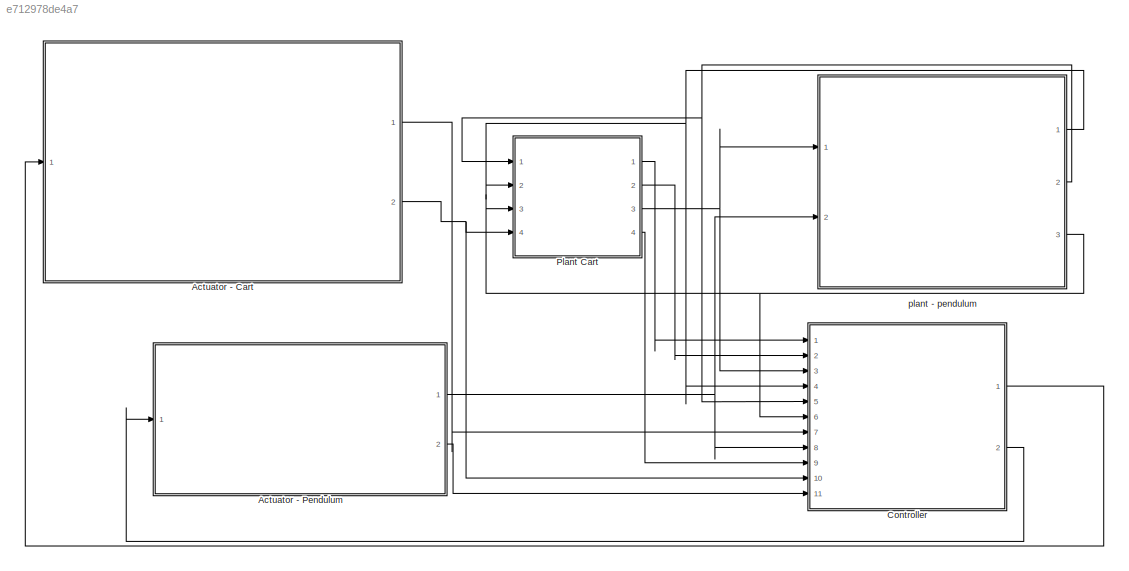
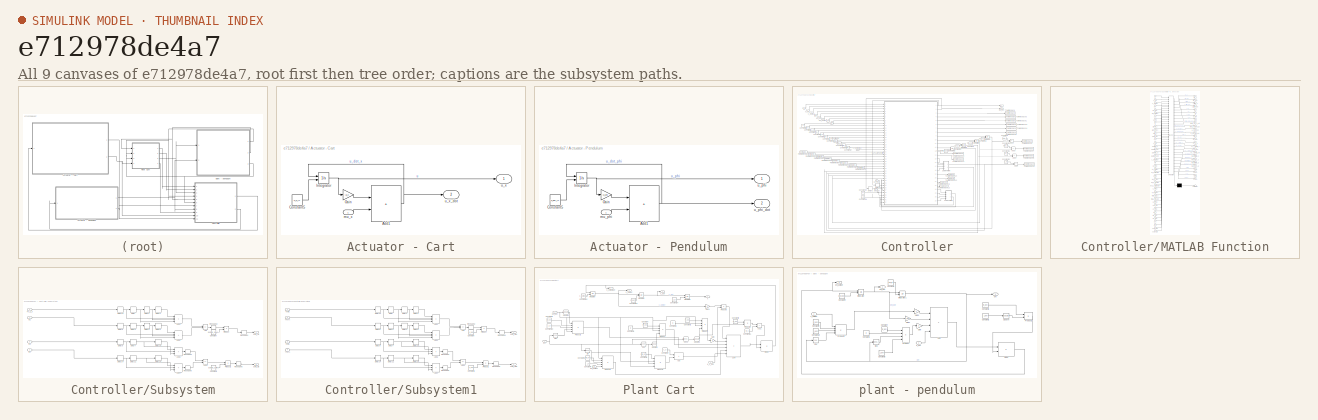
[diagram: thumbnail index - all 9 canvases of the model, root first then tree order]
MODEL slx_e712978de4a7
KIND model
CONFIG AbsTol = auto
CONFIG EnableMultiTasking = off
CONFIG FixedStep = ts
CONFIG MaxStep = auto
CONFIG MinStep = auto
CONFIG RelTol = 1e-3
CONFIG SampleTimeConstraint = Unconstrained
CONFIG SolverName = FixedStepAuto
CONFIG StartTime = 0.0
CONFIG StopTime = tf
BLOCK [SubSystem] Actuator - Cart
  Ports = [1, 2]
  RequestExecContextInheritance = off
BLOCK [Sum] Actuator - Cart/Add1
  IconShape = rectangular
  Ports = [2, 1]
BLOCK [Constant] Actuator - Cart/Constant5
  Value = u_x_ic
BLOCK [Gain] Actuator - Cart/Gain
  Gain = -a_x
BLOCK [Integrator] Actuator - Cart/Integrator
  InitialConditionSource = external
  Ports = [2, 1]
BLOCK [Inport] Actuator - Cart/mu_x
BLOCK [Outport] Actuator - Cart/u_x
BLOCK [Outport] Actuator - Cart/u_x_dot
  Port = 2
BLOCK [SubSystem] Actuator - Pendulum
  Ports = [1, 2]
  RequestExecContextInheritance = off
BLOCK [Sum] Actuator - Pendulum/Add1
  IconShape = rectangular
  Ports = [2, 1]
BLOCK [Constant] Actuator - Pendulum/Constant5
  Value = u_phi_ic
BLOCK [Gain] Actuator - Pendulum/Gain
  Gain = -a_phi
BLOCK [Integrator] Actuator - Pendulum/Integrator
  InitialConditionSource = external
  Ports = [2, 1]
BLOCK [Inport] Actuator - Pendulum/mu_phi
BLOCK [Outport] Actuator - Pendulum/u_phi
BLOCK [Outport] Actuator - Pendulum/u_phi_dot
  Port = 2
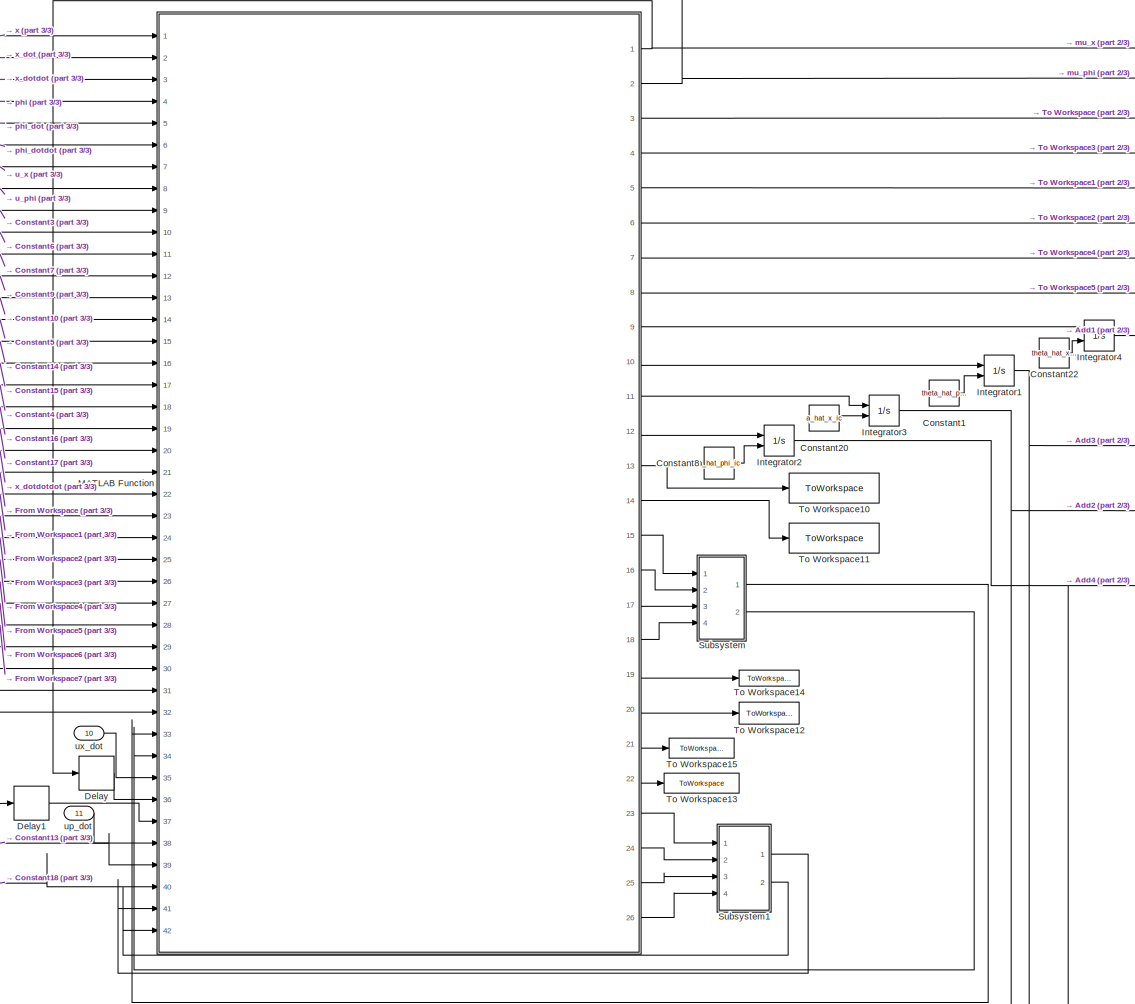
[diagram: Controller - part 1/3, center side, full height]
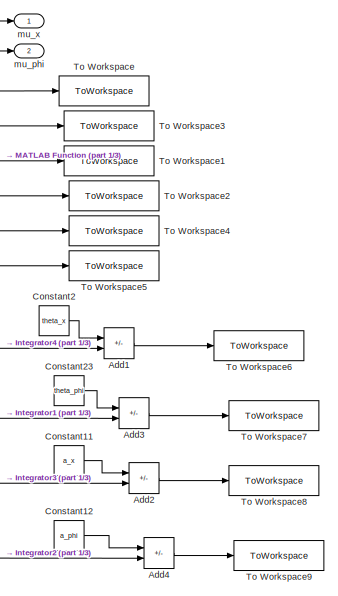
[diagram: Controller - part 2/3, top right region]
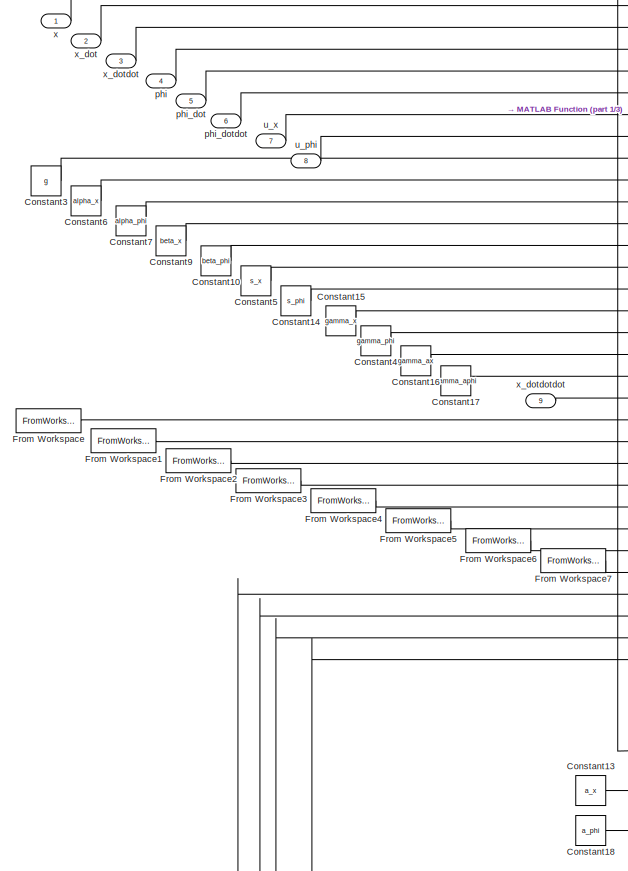
[diagram: Controller - part 3/3, middle left region]
BLOCK [SubSystem] Controller
  Ports = [11, 2]
  RequestExecContextInheritance = off
BLOCK [Sum] Controller/Add1
  IconShape = rectangular
  Inputs = +-
  Ports = [2, 1]
BLOCK [Sum] Controller/Add2
  IconShape = rectangular
  Inputs = +-
  Ports = [2, 1]
BLOCK [Sum] Controller/Add3
  IconShape = rectangular
  Inputs = +-
  Ports = [2, 1]
BLOCK [Sum] Controller/Add4
  IconShape = rectangular
  Inputs = +-
  Ports = [2, 1]
BLOCK [Constant] Controller/Constant1
  Value = theta_hat_phi_ic
BLOCK [Constant] Controller/Constant10
  Value = beta_phi
BLOCK [Constant] Controller/Constant11
  Value = a_x
BLOCK [Constant] Controller/Constant12
  Value = a_phi
BLOCK [Constant] Controller/Constant13
  Value = a_x
BLOCK [Constant] Controller/Constant14
  Value = s_phi
BLOCK [Constant] Controller/Constant15
  Value = gamma_x
BLOCK [Constant] Controller/Constant16
  Value = gamma_ax
BLOCK [Constant] Controller/Constant17
  Value = gamma_aphi
BLOCK [Constant] Controller/Constant18
  Value = a_phi
BLOCK [Constant] Controller/Constant2
  Value = theta_x
BLOCK [Constant] Controller/Constant20
  Value = a_hat_x_ic
BLOCK [Constant] Controller/Constant22
  Value = theta_hat_x_ic
BLOCK [Constant] Controller/Constant23
  Value = theta_phi
BLOCK [Constant] Controller/Constant3
  Value = g
BLOCK [Constant] Controller/Constant4
  Value = gamma_phi
BLOCK [Constant] Controller/Constant5
  Value = s_x
BLOCK [Constant] Controller/Constant6
  Value = alpha_x
BLOCK [Constant] Controller/Constant7
  Value = alpha_phi
BLOCK [Constant] Controller/Constant8
  Value = a_hat_phi_ic
BLOCK [Constant] Controller/Constant9
  Value = beta_x
BLOCK [Delay] Controller/Delay
  DelayLength = 1
  InputPortMap = u0
  Ports = [1, 1]
BLOCK [Delay] Controller/Delay1
  DelayLength = 1
  InputPortMap = u0
  Ports = [1, 1]
BLOCK [FromWorkspace] Controller/From Workspace
  VariableName = xdslx
BLOCK [FromWorkspace] Controller/From Workspace1
  VariableName = xd_dotslx
BLOCK [FromWorkspace] Controller/From Workspace2
  VariableName = xd_dotdotslx
BLOCK [FromWorkspace] Controller/From Workspace3
  VariableName = xd_dotdotdotslx
BLOCK [FromWorkspace] Controller/From Workspace4
  VariableName = pdslx
BLOCK [FromWorkspace] Controller/From Workspace5
  VariableName = pd_dotslx
BLOCK [FromWorkspace] Controller/From Workspace6
  VariableName = pd_dotdotslx
BLOCK [FromWorkspace] Controller/From Workspace7
  VariableName = pd_dotdotdotslx
BLOCK [Integrator] Controller/Integrator1
  InitialConditionSource = external
  Ports = [2, 1]
BLOCK [Integrator] Controller/Integrator2
  InitialConditionSource = external
  Ports = [2, 1]
BLOCK [Integrator] Controller/Integrator3
  InitialConditionSource = external
  Ports = [2, 1]
BLOCK [Integrator] Controller/Integrator4
  InitialConditionSource = external
  Ports = [2, 1]
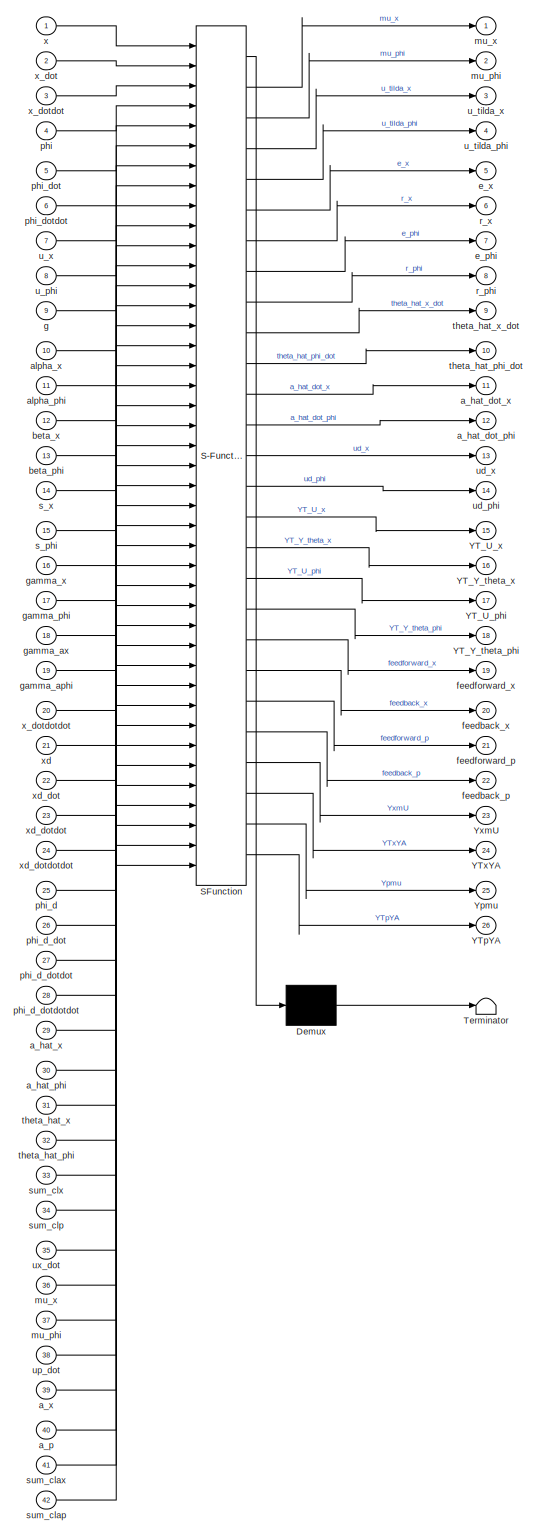
[diagram: Controller/MATLAB Function - part 1/1, most of the canvas]
BLOCK [SubSystem] Controller/MATLAB Function
  ErrorFcn = Stateflow.Translate.translate
  PermitHierarchicalResolution = ExplicitOnly
  Ports = [42, 26]
  RequestExecContextInheritance = off
  SFBlockType = MATLAB Function
  TreatAsAtomicUnit = on
BLOCK [Demux] Controller/MATLAB Function/ Demux 
  Outputs = 1
  Ports = [1, 1]
BLOCK [S-Function] Controller/MATLAB Function/ SFunction 
  EnableBusSupport = on
  FunctionName = sf_sfun
  PortCounts = [42 27]
  Ports = [42, 27]
  SFcnIsStateOwnerBlock = off
  SFunctionDeploymentMode = off
  Tag = Stateflow S-Function 2
BLOCK [Terminator] Controller/MATLAB Function/ Terminator 
BLOCK [Outport] Controller/MATLAB Function/YT_U_phi
  Port = 17
BLOCK [Outport] Controller/MATLAB Function/YT_U_x
  Port = 15
BLOCK [Outport] Controller/MATLAB Function/YT_Y_theta_phi
  Port = 18
BLOCK [Outport] Controller/MATLAB Function/YT_Y_theta_x
  Port = 16
BLOCK [Outport] Controller/MATLAB Function/YTpYA
  Port = 26
BLOCK [Outport] Controller/MATLAB Function/YTxYA
  Port = 24
BLOCK [Outport] Controller/MATLAB Function/Ypmu
  Port = 25
BLOCK [Outport] Controller/MATLAB Function/YxmU
  Port = 23
BLOCK [Outport] Controller/MATLAB Function/a_hat_dot_phi
  Port = 12
BLOCK [Outport] Controller/MATLAB Function/a_hat_dot_x
  Port = 11
BLOCK [Inport] Controller/MATLAB Function/a_hat_phi
  Port = 30
BLOCK [Inport] Controller/MATLAB Function/a_hat_x
  Port = 29
BLOCK [Inport] Controller/MATLAB Function/a_p
  Port = 40
BLOCK [Inport] Controller/MATLAB Function/a_x
  Port = 39
BLOCK [Inport] Controller/MATLAB Function/alpha_phi
  Port = 11
BLOCK [Inport] Controller/MATLAB Function/alpha_x
  Port = 10
BLOCK [Inport] Controller/MATLAB Function/beta_phi
  Port = 13
BLOCK [Inport] Controller/MATLAB Function/beta_x
  Port = 12
BLOCK [Outport] Controller/MATLAB Function/e_phi
  Port = 7
BLOCK [Outport] Controller/MATLAB Function/e_x
  Port = 5
BLOCK [Outport] Controller/MATLAB Function/feedback_p
  Port = 22
BLOCK [Outport] Controller/MATLAB Function/feedback_x
  Port = 20
BLOCK [Outport] Controller/MATLAB Function/feedforward_p
  Port = 21
BLOCK [Outport] Controller/MATLAB Function/feedforward_x
  Port = 19
BLOCK [Inport] Controller/MATLAB Function/g
  Port = 9
BLOCK [Inport] Controller/MATLAB Function/gamma_aphi
  Port = 19
BLOCK [Inport] Controller/MATLAB Function/gamma_ax
  Port = 18
BLOCK [Inport] Controller/MATLAB Function/gamma_phi
  Port = 17
BLOCK [Inport] Controller/MATLAB Function/gamma_x
  Port = 16
BLOCK [Outport] Controller/MATLAB Function/mu_phi
  Port = 2
BLOCK [Inport] Controller/MATLAB Function/mu_phi 
  Port = 37
BLOCK [Outport] Controller/MATLAB Function/mu_x
BLOCK [Inport] Controller/MATLAB Function/mu_x 
  Port = 36
BLOCK [Inport] Controller/MATLAB Function/phi
  Port = 4
BLOCK [Inport] Controller/MATLAB Function/phi_d
  Port = 25
BLOCK [Inport] Controller/MATLAB Function/phi_d_dot
  Port = 26
BLOCK [Inport] Controller/MATLAB Function/phi_d_dotdot
  Port = 27
BLOCK [Inport] Controller/MATLAB Function/phi_d_dotdotdot
  Port = 28
BLOCK [Inport] Controller/MATLAB Function/phi_dot
  Port = 5
BLOCK [Inport] Controller/MATLAB Function/phi_dotdot
  Port = 6
BLOCK [Outport] Controller/MATLAB Function/r_phi
  Port = 8
BLOCK [Outport] Controller/MATLAB Function/r_x
  Port = 6
BLOCK [Inport] Controller/MATLAB Function/s_phi
  Port = 15
BLOCK [Inport] Controller/MATLAB Function/s_x
  Port = 14
BLOCK [Inport] Controller/MATLAB Function/sum_clap
  Port = 42
BLOCK [Inport] Controller/MATLAB Function/sum_clax
  Port = 41
BLOCK [Inport] Controller/MATLAB Function/sum_clp
  Port = 34
BLOCK [Inport] Controller/MATLAB Function/sum_clx
  Port = 33
BLOCK [Inport] Controller/MATLAB Function/theta_hat_phi
  Port = 32
BLOCK [Outport] Controller/MATLAB Function/theta_hat_phi_dot
  Port = 10
BLOCK [Inport] Controller/MATLAB Function/theta_hat_x
  Port = 31
BLOCK [Outport] Controller/MATLAB Function/theta_hat_x_dot
  Port = 9
BLOCK [Inport] Controller/MATLAB Function/u_phi
  Port = 8
BLOCK [Outport] Controller/MATLAB Function/u_tilda_phi
  Port = 4
BLOCK [Outport] Controller/MATLAB Function/u_tilda_x
  Port = 3
BLOCK [Inport] Controller/MATLAB Function/u_x
  Port = 7
BLOCK [Outport] Controller/MATLAB Function/ud_phi
  Port = 14
BLOCK [Outport] Controller/MATLAB Function/ud_x
  Port = 13
BLOCK [Inport] Controller/MATLAB Function/up_dot
  Port = 38
BLOCK [Inport] Controller/MATLAB Function/ux_dot
  Port = 35
BLOCK [Inport] Controller/MATLAB Function/x
BLOCK [Inport] Controller/MATLAB Function/x_dot
  Port = 2
BLOCK [Inport] Controller/MATLAB Function/x_dotdot
  Port = 3
BLOCK [Inport] Controller/MATLAB Function/x_dotdotdot
  Port = 20
BLOCK [Inport] Controller/MATLAB Function/xd
  Port = 21
BLOCK [Inport] Controller/MATLAB Function/xd_dot
  Port = 22
BLOCK [Inport] Controller/MATLAB Function/xd_dotdot
  Port = 23
BLOCK [Inport] Controller/MATLAB Function/xd_dotdotdot
  Port = 24
BLOCK [SubSystem] Controller/Subsystem
  Ports = [4, 2]
  RequestExecContextInheritance = off
BLOCK [Sum] Controller/Subsystem/Add
  IconShape = rectangular
  Inputs = +-
  Ports = [2, 1]
BLOCK [Sum] Controller/Subsystem/Add1
  IconShape = rectangular
  Inputs = ++++
  Ports = [4, 1]
BLOCK [Sum] Controller/Subsystem/Add2
  IconShape = rectangular
  Inputs = ++++
  Ports = [4, 1]
BLOCK [Sum] Controller/Subsystem/Add3
  IconShape = rectangular
  Inputs = +-
  Ports = [2, 1]
BLOCK [Sum] Controller/Subsystem/Add4
  IconShape = rectangular
  Inputs = +++
  Ports = [3, 1]
BLOCK [Sum] Controller/Subsystem/Add5
  IconShape = rectangular
  Inputs = +++
  Ports = [3, 1]
BLOCK [Constant] Controller/Subsystem/Constant
  Value = gamma_x*K_clx
BLOCK [Constant] Controller/Subsystem/Constant1
  Value = gamma_phi*K_clp
BLOCK [Delay] Controller/Subsystem/Delay
  DelayLength = 1
  InitialCondition = zeros(4,1)
  InputPortMap = u0
  Ports = [1, 1]
BLOCK [Delay] Controller/Subsystem/Delay1
  DelayLength = 1
  InitialCondition = zeros(4,1)
  InputPortMap = u0
  Ports = [1, 1]
BLOCK [Delay] Controller/Subsystem/Delay10
  DelayLength = 1
  InputPortMap = u0
  Ports = [1, 1]
BLOCK [Delay] Controller/Subsystem/Delay11
  DelayLength = 1
  InputPortMap = u0
  Ports = [1, 1]
BLOCK [Delay] Controller/Subsystem/Delay12
  DelayLength = 1
  InitialCondition = zeros(4,1)
  InputPortMap = u0
  Ports = [1, 1]
BLOCK [Delay] Controller/Subsystem/Delay14
  DelayLength = 1
  InputPortMap = u0
  Ports = [1, 1]
BLOCK [Delay] Controller/Subsystem/Delay15
  DelayLength = 1
  InputPortMap = u0
  Ports = [1, 1]
BLOCK [Delay] Controller/Subsystem/Delay2
  DelayLength = 1
  InitialCondition = zeros(4,1)
  InputPortMap = u0
  Ports = [1, 1]
BLOCK [Delay] Controller/Subsystem/Delay3
  DelayLength = 1
  InputPortMap = u0
  Ports = [1, 1]
BLOCK [Delay] Controller/Subsystem/Delay4
  DelayLength = 1
  InputPortMap = u0
  Ports = [1, 1]
BLOCK [Delay] Controller/Subsystem/Delay5
  DelayLength = 1
  InputPortMap = u0
  Ports = [1, 1]
BLOCK [Delay] Controller/Subsystem/Delay6
  DelayLength = 1
  InputPortMap = u0
  Ports = [1, 1]
BLOCK [Delay] Controller/Subsystem/Delay7
  DelayLength = 1
  InputPortMap = u0
  Ports = [1, 1]
BLOCK [Delay] Controller/Subsystem/Delay9
  DelayLength = 1
  InputPortMap = u0
  Ports = [1, 1]
BLOCK [Inport] Controller/Subsystem/In2
  Port = 2
  PortDimensions = [4,1]
BLOCK [Inport] Controller/Subsystem/In3
  Port = 3
  PortDimensions = [3,1]
BLOCK [Inport] Controller/Subsystem/In4
  Port = 4
  PortDimensions = [3,1]
BLOCK [Product] Controller/Subsystem/Product
  Multiplication = Matrix(*)
  Ports = [2, 1]
BLOCK [Product] Controller/Subsystem/Product1
  Multiplication = Matrix(*)
  Ports = [2, 1]
BLOCK [Reshape] Controller/Subsystem/Reshape2
  OutputDimensionality = Row vector (2-D)
  Ports = [1, 1]
BLOCK [Reshape] Controller/Subsystem/Reshape3
  OutputDimensionality = Row vector (2-D)
  Ports = [1, 1]
BLOCK [Reshape] Controller/Subsystem/Reshape4
  Ports = [1, 1]
BLOCK [Reshape] Controller/Subsystem/Reshape5
  OutputDimensionality = Row vector (2-D)
  Ports = [1, 1]
BLOCK [Reshape] Controller/Subsystem/Reshape6
  Ports = [1, 1]
BLOCK [Inport] Controller/Subsystem/YT_U_x
  PortDimensions = [4,1]
BLOCK [Outport] Controller/Subsystem/sum_clp
  Port = 2
BLOCK [Outport] Controller/Subsystem/sum_clx
BLOCK [SubSystem] Controller/Subsystem1
  Ports = [4, 2]
  RequestExecContextInheritance = off
BLOCK [Sum] Controller/Subsystem1/Add
  IconShape = rectangular
  Inputs = +-
  Ports = [2, 1]
BLOCK [Sum] Controller/Subsystem1/Add1
  IconShape = rectangular
  Inputs = ++++
  Ports = [4, 1]
BLOCK [Sum] Controller/Subsystem1/Add2
  IconShape = rectangular
  Inputs = ++++
  Ports = [4, 1]
BLOCK [Sum] Controller/Subsystem1/Add3
  IconShape = rectangular
  Inputs = +-
  Ports = [2, 1]
BLOCK [Sum] Controller/Subsystem1/Add4
  IconShape = rectangular
  Inputs = +++
  Ports = [3, 1]
BLOCK [Sum] Controller/Subsystem1/Add5
  IconShape = rectangular
  Inputs = +++
  Ports = [3, 1]
BLOCK [Constant] Controller/Subsystem1/Constant
  Value = K_axp
BLOCK [Constant] Controller/Subsystem1/Constant1
  Value = K_axp
BLOCK [Delay] Controller/Subsystem1/Delay
  DelayLength = 1
  InitialCondition = zeros(1,1)
  InputPortMap = u0
  Ports = [1, 1]
BLOCK [Delay] Controller/Subsystem1/Delay1
  DelayLength = 1
  InitialCondition = zeros(1,1)
  InputPortMap = u0
  Ports = [1, 1]
BLOCK [Delay] Controller/Subsystem1/Delay10
  DelayLength = 1
  InputPortMap = u0
  Ports = [1, 1]
BLOCK [Delay] Controller/Subsystem1/Delay11
  DelayLength = 1
  InputPortMap = u0
  Ports = [1, 1]
BLOCK [Delay] Controller/Subsystem1/Delay12
  DelayLength = 1
  InitialCondition = zeros(1,1)
  InputPortMap = u0
  Ports = [1, 1]
BLOCK [Delay] Controller/Subsystem1/Delay14
  DelayLength = 1
  InputPortMap = u0
  Ports = [1, 1]
BLOCK [Delay] Controller/Subsystem1/Delay15
  DelayLength = 1
  InputPortMap = u0
  Ports = [1, 1]
BLOCK [Delay] Controller/Subsystem1/Delay2
  DelayLength = 1
  InitialCondition = zeros(1,1)
  InputPortMap = u0
  Ports = [1, 1]
BLOCK [Delay] Controller/Subsystem1/Delay3
  DelayLength = 1
  InputPortMap = u0
  Ports = [1, 1]
BLOCK [Delay] Controller/Subsystem1/Delay4
  DelayLength = 1
  InputPortMap = u0
  Ports = [1, 1]
BLOCK [Delay] Controller/Subsystem1/Delay5
  DelayLength = 1
  InputPortMap = u0
  Ports = [1, 1]
BLOCK [Delay] Controller/Subsystem1/Delay6
  DelayLength = 1
  InputPortMap = u0
  Ports = [1, 1]
BLOCK [Delay] Controller/Subsystem1/Delay7
  DelayLength = 1
  InputPortMap = u0
  Ports = [1, 1]
BLOCK [Delay] Controller/Subsystem1/Delay9
  DelayLength = 1
  InputPortMap = u0
  Ports = [1, 1]
BLOCK [Product] Controller/Subsystem1/Product
  Multiplication = Matrix(*)
  Ports = [2, 1]
BLOCK [Product] Controller/Subsystem1/Product1
  Multiplication = Matrix(*)
  Ports = [2, 1]
BLOCK [Reshape] Controller/Subsystem1/Reshape2
  OutputDimensionality = Row vector (2-D)
  Ports = [1, 1]
BLOCK [Reshape] Controller/Subsystem1/Reshape3
  OutputDimensionality = Row vector (2-D)
  Ports = [1, 1]
BLOCK [Reshape] Controller/Subsystem1/Reshape4
  Ports = [1, 1]
BLOCK [Reshape] Controller/Subsystem1/Reshape5
  OutputDimensionality = Row vector (2-D)
  Ports = [1, 1]
BLOCK [Reshape] Controller/Subsystem1/Reshape6
  Ports = [1, 1]
BLOCK [Inport] Controller/Subsystem1/YTpYA
  Port = 4
  PortDimensions = [1,1]
BLOCK [Inport] Controller/Subsystem1/YTxYA
  Port = 2
  PortDimensions = [1,1]
BLOCK [Inport] Controller/Subsystem1/Ypmu
  Port = 3
  PortDimensions = [1,1]
BLOCK [Inport] Controller/Subsystem1/Yxmu
  PortDimensions = [1,1]
BLOCK [Outport] Controller/Subsystem1/sum_clap
  Port = 2
BLOCK [Outport] Controller/Subsystem1/sum_clax
BLOCK [ToWorkspace] Controller/To Workspace
  FixptAsFi = on
  MaxDataPoints = inf
  Ports = [1]
  SampleTime = -1
  SaveFormat = Timeseries
  VariableName = u_tilda_x_t
BLOCK [ToWorkspace] Controller/To Workspace1
  FixptAsFi = on
  MaxDataPoints = inf
  Ports = [1]
  SampleTime = -1
  SaveFormat = Timeseries
  VariableName = e_x_t
BLOCK [ToWorkspace] Controller/To Workspace10
  FixptAsFi = on
  MaxDataPoints = inf
  Ports = [1]
  SampleTime = -1
  SaveFormat = Timeseries
  VariableName = ud_x_t
BLOCK [ToWorkspace] Controller/To Workspace11
  FixptAsFi = on
  MaxDataPoints = inf
  Ports = [1]
  SampleTime = -1
  SaveFormat = Timeseries
  VariableName = ud_phi_t
BLOCK [ToWorkspace] Controller/To Workspace12
  FixptAsFi = on
  MaxDataPoints = inf
  Ports = [1]
  SampleTime = -1
  SaveFormat = Timeseries
  VariableName = fb_x
BLOCK [ToWorkspace] Controller/To Workspace13
  FixptAsFi = on
  MaxDataPoints = inf
  Ports = [1]
  SampleTime = -1
  SaveFormat = Timeseries
  VariableName = fb_p
BLOCK [ToWorkspace] Controller/To Workspace14
  FixptAsFi = on
  MaxDataPoints = inf
  Ports = [1]
  SampleTime = -1
  SaveFormat = Timeseries
  VariableName = ff_x
BLOCK [ToWorkspace] Controller/To Workspace15
  FixptAsFi = on
  MaxDataPoints = inf
  Ports = [1]
  SampleTime = -1
  SaveFormat = Timeseries
  VariableName = ff_p
BLOCK [ToWorkspace] Controller/To Workspace2
  FixptAsFi = on
  MaxDataPoints = inf
  Ports = [1]
  SampleTime = -1
  SaveFormat = Timeseries
  VariableName = r_x_t
BLOCK [ToWorkspace] Controller/To Workspace3
  FixptAsFi = on
  MaxDataPoints = inf
  Ports = [1]
  SampleTime = -1
  SaveFormat = Timeseries
  VariableName = u_tilda_phi_t
BLOCK [ToWorkspace] Controller/To Workspace4
  FixptAsFi = on
  MaxDataPoints = inf
  Ports = [1]
  SampleTime = -1
  SaveFormat = Timeseries
  VariableName = e_phi_t
BLOCK [ToWorkspace] Controller/To Workspace5
  FixptAsFi = on
  MaxDataPoints = inf
  Ports = [1]
  SampleTime = -1
  SaveFormat = Timeseries
  VariableName = r_phi_t
BLOCK [ToWorkspace] Controller/To Workspace6
  FixptAsFi = on
  MaxDataPoints = inf
  Ports = [1]
  SampleTime = -1
  SaveFormat = Timeseries
  VariableName = theta_x_tilda_t
BLOCK [ToWorkspace] Controller/To Workspace7
  FixptAsFi = on
  MaxDataPoints = inf
  Ports = [1]
  SampleTime = -1
  SaveFormat = Timeseries
  VariableName = theta_phi_tilda_t
BLOCK [ToWorkspace] Controller/To Workspace8
  FixptAsFi = on
  MaxDataPoints = inf
  Ports = [1]
  SampleTime = -1
  SaveFormat = Timeseries
  VariableName = a_x_tilda_t
BLOCK [ToWorkspace] Controller/To Workspace9
  FixptAsFi = on
  MaxDataPoints = inf
  Ports = [1]
  SampleTime = -1
  SaveFormat = Timeseries
  VariableName = a_phi_tilda_t
BLOCK [Outport] Controller/mu_phi
  Port = 2
BLOCK [Outport] Controller/mu_x
BLOCK [Inport] Controller/phi
  Port = 4
BLOCK [Inport] Controller/phi_dot
  Port = 5
BLOCK [Inport] Controller/phi_dotdot
  Port = 6
BLOCK [Inport] Controller/u_phi
  Port = 8
BLOCK [Inport] Controller/u_x
  Port = 7
BLOCK [Inport] Controller/up_dot
  Port = 11
BLOCK [Inport] Controller/ux_dot
  Port = 10
BLOCK [Inport] Controller/x
BLOCK [Inport] Controller/x_dot
  Port = 2
BLOCK [Inport] Controller/x_dotdot
  Port = 3
BLOCK [Inport] Controller/x_dotdotdot
  Port = 9
BLOCK [SubSystem] Plant Cart
  Ports = [4, 4]
  RequestExecContextInheritance = off
BLOCK [Sum] Plant Cart/Add
  IconShape = rectangular
  Ports = [2, 1]
BLOCK [Sum] Plant Cart/Add1
  IconShape = rectangular
  Ports = [2, 1]
BLOCK [Constant] Plant Cart/Constant
  Value = m_phi
BLOCK [Constant] Plant Cart/Constant1
  Value = g
BLOCK [Constant] Plant Cart/Constant10
  Value = l_x
BLOCK [Constant] Plant Cart/Constant11
  Value = m_x
BLOCK [Constant] Plant Cart/Constant12
  Value = x_dotdot_ic
BLOCK [Constant] Plant Cart/Constant13
  Value = x_dot_ic
BLOCK [Constant] Plant Cart/Constant14
  Value = x_ic
BLOCK [Constant] Plant Cart/Constant2
  Value = m_phi
BLOCK [Constant] Plant Cart/Constant3
  Value = g
BLOCK [Constant] Plant Cart/Constant4
  Value = l_x
BLOCK [Constant] Plant Cart/Constant5
  Value = 2*m_phi
BLOCK [Constant] Plant Cart/Constant6
  Value = 2*m_phi
BLOCK [Constant] Plant Cart/Constant7
  Value = c_x
BLOCK [Constant] Plant Cart/Constant8
  Value = m_phi
BLOCK [Constant] Plant Cart/Constant9
  Value = m_phi
BLOCK [Trigonometry] Plant Cart/Cos
  Operator = cos
  Ports = [1, 1]
BLOCK [Trigonometry] Plant Cart/Cos1
  Ports = [1, 1]
BLOCK [Product] Plant Cart/Divide
  Inputs = */
  Ports = [2, 1]
BLOCK [Gain] Plant Cart/Gain
  Gain = -1
BLOCK [Gain] Plant Cart/Gain1
  Gain = -1
BLOCK [Integrator] Plant Cart/Integrator
  InitialConditionSource = external
  Ports = [2, 1]
BLOCK [Integrator] Plant Cart/Integrator1
  InitialConditionSource = external
  Ports = [2, 1]
BLOCK [Integrator] Plant Cart/Integrator2
  InitialConditionSource = external
  Ports = [2, 1]
BLOCK [Product] Plant Cart/Product
  Inputs = 4
  Ports = [4, 1]
BLOCK [Product] Plant Cart/Product1
  Inputs = 4
  Ports = [4, 1]
BLOCK [Product] Plant Cart/Product2
  Inputs = 5
  Ports = [5, 1]
BLOCK [Product] Plant Cart/Product3
  Inputs = 5
  Ports = [5, 1]
BLOCK [Product] Plant Cart/Product4
  Inputs = 4
  Ports = [4, 1]
BLOCK [Product] Plant Cart/Product5
  Ports = [2, 1]
BLOCK [Product] Plant Cart/Product6
  Ports = [2, 1]
BLOCK [Trigonometry] Plant Cart/Sin
  Ports = [1, 1]
BLOCK [Trigonometry] Plant Cart/Sin2
  Operator = cos
  Ports = [1, 1]
BLOCK [Math] Plant Cart/Square1
  Operator = square
  Ports = [1, 1]
BLOCK [Math] Plant Cart/Square2
  Operator = square
  Ports = [1, 1]
BLOCK [Math] Plant Cart/Square3
  Operator = square
  Ports = [1, 1]
BLOCK [Sum] Plant Cart/Sum
  IconShape = rectangular
  Inputs = ++++++
  Ports = [6, 1]
BLOCK [Inport] Plant Cart/phi
  Port = 2
BLOCK [Inport] Plant Cart/phi_dot
BLOCK [Inport] Plant Cart/phi_dotdot
  Port = 3
BLOCK [Inport] Plant Cart/u_x_dot
  Port = 4
BLOCK [Outport] Plant Cart/x
BLOCK [Outport] Plant Cart/x_dot
  Port = 2
BLOCK [Outport] Plant Cart/x_dotdot
  Port = 3
BLOCK [Outport] Plant Cart/x_dotdotdot
  Port = 4
BLOCK [SubSystem] plant - pendulum
  Ports = [2, 3]
  RequestExecContextInheritance = off
BLOCK [Sum] plant - pendulum/Add
  IconShape = rectangular
  Inputs = ++++
  Ports = [4, 1]
BLOCK [Constant] plant - pendulum/Constant
  Value = m_phi
BLOCK [Constant] plant - pendulum/Constant1
  Value = g
BLOCK [Constant] plant - pendulum/Constant10
  Value = l_phi
BLOCK [Constant] plant - pendulum/Constant2
  Value = l_phi
BLOCK [Constant] plant - pendulum/Constant3
  Value = l_phi
BLOCK [Constant] plant - pendulum/Constant4
  Value = phi_dot_ic
BLOCK [Constant] plant - pendulum/Constant5
  Value = phi_ic
BLOCK [Constant] plant - pendulum/Constant6
  Value = m_phi
BLOCK [Constant] plant - pendulum/Constant9
  Value = m_phi
BLOCK [Trigonometry] plant - pendulum/Cos
  Operator = cos
  Ports = [1, 1]
BLOCK [Product] plant - pendulum/Divide
  Inputs = */
  Ports = [2, 1]
BLOCK [Gain] plant - pendulum/Gain
  Gain = -1
BLOCK [Gain] plant - pendulum/Gain1
  Gain = -c_phi
BLOCK [Gain] plant - pendulum/Gain2
  Gain = -1
BLOCK [Integrator] plant - pendulum/Integrator
  InitialConditionSource = external
  Ports = [2, 1]
BLOCK [Integrator] plant - pendulum/Integrator1
  InitialConditionSource = external
  Ports = [2, 1]
BLOCK [Product] plant - pendulum/Product
  Inputs = 4
  Ports = [4, 1]
BLOCK [Product] plant - pendulum/Product1
  Ports = [2, 1]
BLOCK [Product] plant - pendulum/Product2
  Inputs = 4
  Ports = [4, 1]
BLOCK [Trigonometry] plant - pendulum/Sin2
  Ports = [1, 1]
BLOCK [Math] plant - pendulum/Square
  Operator = square
  Ports = [1, 1]
BLOCK [Outport] plant - pendulum/phi
BLOCK [Outport] plant - pendulum/phi_dot
  Port = 2
BLOCK [Outport] plant - pendulum/phi_dotdot
  Port = 3
BLOCK [Inport] plant - pendulum/u_phi
  Port = 2
BLOCK [Inport] plant - pendulum/x_dotdot
NET Actuator - Cart/Add1:1 -> Actuator - Cart/Integrator:1, Actuator - Cart/u_x_dot:1
LINE Actuator - Cart/Constant5:1 -> Actuator - Cart/Integrator:2
LINE Actuator - Cart/Gain:1 -> Actuator - Cart/Add1:1
NET Actuator - Cart/Integrator:1 -> Actuator - Cart/Gain:1, Actuator - Cart/u_x:1
LINE Actuator - Cart/mu_x:1 -> Actuator - Cart/Add1:2
LINE Actuator - Cart:1 -> Controller:7
NET Actuator - Cart:2 -> Controller:10, Plant Cart:4
NET Actuator - Pendulum/Add1:1 -> Actuator - Pendulum/Integrator:1, Actuator - Pendulum/u_phi_dot:1
LINE Actuator - Pendulum/Constant5:1 -> Actuator - Pendulum/Integrator:2
LINE Actuator - Pendulum/Gain:1 -> Actuator - Pendulum/Add1:1
NET Actuator - Pendulum/Integrator:1 -> Actuator - Pendulum/Gain:1, Actuator - Pendulum/u_phi:1
LINE Actuator - Pendulum/mu_phi:1 -> Actuator - Pendulum/Add1:2
NET Actuator - Pendulum:1 -> Controller:8, plant - pendulum:2
LINE Actuator - Pendulum:2 -> Controller:11
LINE Controller/Add1:1 -> Controller/To Workspace6:1
LINE Controller/Add2:1 -> Controller/To Workspace8:1
LINE Controller/Add3:1 -> Controller/To Workspace7:1
LINE Controller/Add4:1 -> Controller/To Workspace9:1
LINE Controller/Constant10:1 -> Controller/MATLAB Function:13
LINE Controller/Constant11:1 -> Controller/Add2:1
LINE Controller/Constant12:1 -> Controller/Add4:1
LINE Controller/Constant13:1 -> Controller/MATLAB Function:39
LINE Controller/Constant14:1 -> Controller/MATLAB Function:15
LINE Controller/Constant15:1 -> Controller/MATLAB Function:16
LINE Controller/Constant16:1 -> Controller/MATLAB Function:18
LINE Controller/Constant17:1 -> Controller/MATLAB Function:19
LINE Controller/Constant18:1 -> Controller/MATLAB Function:40
LINE Controller/Constant1:1 -> Controller/Integrator1:2
LINE Controller/Constant20:1 -> Controller/Integrator3:2
LINE Controller/Constant22:1 -> Controller/Integrator4:2
LINE Controller/Constant23:1 -> Controller/Add3:1
LINE Controller/Constant2:1 -> Controller/Add1:1
LINE Controller/Constant3:1 -> Controller/MATLAB Function:9
LINE Controller/Constant4:1 -> Controller/MATLAB Function:17
LINE Controller/Constant5:1 -> Controller/MATLAB Function:14
LINE Controller/Constant6:1 -> Controller/MATLAB Function:10
LINE Controller/Constant7:1 -> Controller/MATLAB Function:11
LINE Controller/Constant8:1 -> Controller/Integrator2:2
LINE Controller/Constant9:1 -> Controller/MATLAB Function:12
LINE Controller/Delay1:1 -> Controller/MATLAB Function:37
LINE Controller/Delay:1 -> Controller/MATLAB Function:36
LINE Controller/From Workspace1:1 -> Controller/MATLAB Function:22
LINE Controller/From Workspace2:1 -> Controller/MATLAB Function:23
LINE Controller/From Workspace3:1 -> Controller/MATLAB Function:24
LINE Controller/From Workspace4:1 -> Controller/MATLAB Function:25
LINE Controller/From Workspace5:1 -> Controller/MATLAB Function:26
LINE Controller/From Workspace6:1 -> Controller/MATLAB Function:27
LINE Controller/From Workspace7:1 -> Controller/MATLAB Function:28
LINE Controller/From Workspace:1 -> Controller/MATLAB Function:21
NET Controller/Integrator1:1 -> Controller/Add3:2, Controller/MATLAB Function:32
NET Controller/Integrator2:1 -> Controller/Add4:2, Controller/MATLAB Function:30
NET Controller/Integrator3:1 -> Controller/Add2:2, Controller/MATLAB Function:29
NET Controller/Integrator4:1 -> Controller/Add1:2, Controller/MATLAB Function:31
NET Controller/MATLAB Function:1 -> Controller/Delay:1, Controller/mu_x:1
LINE Controller/MATLAB Function:10 -> Controller/Integrator1:1
LINE Controller/MATLAB Function:11 -> Controller/Integrator3:1
LINE Controller/MATLAB Function:12 -> Controller/Integrator2:1
LINE Controller/MATLAB Function:13 -> Controller/To Workspace10:1
LINE Controller/MATLAB Function:14 -> Controller/To Workspace11:1
LINE Controller/MATLAB Function:15 -> Controller/Subsystem:1
LINE Controller/MATLAB Function:16 -> Controller/Subsystem:2
LINE Controller/MATLAB Function:17 -> Controller/Subsystem:3
LINE Controller/MATLAB Function:18 -> Controller/Subsystem:4
LINE Controller/MATLAB Function:19 -> Controller/To Workspace14:1
NET Controller/MATLAB Function:2 -> Controller/Delay1:1, Controller/mu_phi:1
LINE Controller/MATLAB Function:20 -> Controller/To Workspace12:1
LINE Controller/MATLAB Function:21 -> Controller/To Workspace15:1
LINE Controller/MATLAB Function:22 -> Controller/To Workspace13:1
LINE Controller/MATLAB Function:23 -> Controller/Subsystem1:1
LINE Controller/MATLAB Function:24 -> Controller/Subsystem1:2
LINE Controller/MATLAB Function:25 -> Controller/Subsystem1:3
LINE Controller/MATLAB Function:26 -> Controller/Subsystem1:4
LINE Controller/MATLAB Function:3 -> Controller/To Workspace:1
LINE Controller/MATLAB Function:4 -> Controller/To Workspace3:1
LINE Controller/MATLAB Function:5 -> Controller/To Workspace1:1
LINE Controller/MATLAB Function:6 -> Controller/To Workspace2:1
LINE Controller/MATLAB Function:7 -> Controller/To Workspace4:1
LINE Controller/MATLAB Function:8 -> Controller/To Workspace5:1
LINE Controller/MATLAB Function:9 -> Controller/Integrator4:1
LINE Controller/Subsystem/Add1:1 -> Controller/Subsystem/Add:2
LINE Controller/Subsystem/Add2:1 -> Controller/Subsystem/Add:1
LINE Controller/Subsystem/Add3:1 -> Controller/Subsystem/Product1:1
LINE Controller/Subsystem/Add4:1 -> Controller/Subsystem/Reshape5:1
LINE Controller/Subsystem/Add5:1 -> Controller/Subsystem/Reshape3:1
LINE Controller/Subsystem/Add:1 -> Controller/Subsystem/Reshape2:1
LINE Controller/Subsystem/Constant1:1 -> Controller/Subsystem/Product1:2
LINE Controller/Subsystem/Constant:1 -> Controller/Subsystem/Product:2
LINE Controller/Subsystem/Delay10:1 -> Controller/Subsystem/Add5:1
NET Controller/Subsystem/Delay11:1 -> Controller/Subsystem/Add4:3, Controller/Subsystem/Delay15:1
NET Controller/Subsystem/Delay12:1 -> Controller/Subsystem/Add2:2, Controller/Subsystem/Delay:1
NET Controller/Subsystem/Delay14:1 -> Controller/Subsystem/Add4:2, Controller/Subsystem/Delay11:1
LINE Controller/Subsystem/Delay15:1 -> Controller/Subsystem/Add4:1
NET Controller/Subsystem/Delay1:1 -> Controller/Subsystem/Add2:3, Controller/Subsystem/Delay2:1
LINE Controller/Subsystem/Delay2:1 -> Controller/Subsystem/Add2:1
NET Controller/Subsystem/Delay3:1 -> Controller/Subsystem/Add1:4, Controller/Subsystem/Delay4:1
NET Controller/Subsystem/Delay4:1 -> Controller/Subsystem/Add1:3, Controller/Subsystem/Delay6:1
NET Controller/Subsystem/Delay5:1 -> Controller/Subsystem/Add1:2, Controller/Subsystem/Delay3:1
LINE Controller/Subsystem/Delay6:1 -> Controller/Subsystem/Add1:1
NET Controller/Subsystem/Delay7:1 -> Controller/Subsystem/Add5:3, Controller/Subsystem/Delay10:1
NET Controller/Subsystem/Delay9:1 -> Controller/Subsystem/Add5:2, Controller/Subsystem/Delay7:1
NET Controller/Subsystem/Delay:1 -> Controller/Subsystem/Add2:4, Controller/Subsystem/Delay1:1
LINE Controller/Subsystem/In2:1 -> Controller/Subsystem/Delay5:1
LINE Controller/Subsystem/In3:1 -> Controller/Subsystem/Delay9:1
LINE Controller/Subsystem/In4:1 -> Controller/Subsystem/Delay14:1
LINE Controller/Subsystem/Product1:1 -> Controller/Subsystem/Reshape6:1
LINE Controller/Subsystem/Product:1 -> Controller/Subsystem/Reshape4:1
LINE Controller/Subsystem/Reshape2:1 -> Controller/Subsystem/Product:1
LINE Controller/Subsystem/Reshape3:1 -> Controller/Subsystem/Add3:1
LINE Controller/Subsystem/Reshape4:1 -> Controller/Subsystem/sum_clx:1
LINE Controller/Subsystem/Reshape5:1 -> Controller/Subsystem/Add3:2
LINE Controller/Subsystem/Reshape6:1 -> Controller/Subsystem/sum_clp:1
LINE Controller/Subsystem/YT_U_x:1 -> Controller/Subsystem/Delay12:1
LINE Controller/Subsystem1/Add1:1 -> Controller/Subsystem1/Add:2
LINE Controller/Subsystem1/Add2:1 -> Controller/Subsystem1/Add:1
LINE Controller/Subsystem1/Add3:1 -> Controller/Subsystem1/Product1:1
LINE Controller/Subsystem1/Add4:1 -> Controller/Subsystem1/Reshape5:1
LINE Controller/Subsystem1/Add5:1 -> Controller/Subsystem1/Reshape3:1
LINE Controller/Subsystem1/Add:1 -> Controller/Subsystem1/Reshape2:1
LINE Controller/Subsystem1/Constant1:1 -> Controller/Subsystem1/Product1:2
LINE Controller/Subsystem1/Constant:1 -> Controller/Subsystem1/Product:2
LINE Controller/Subsystem1/Delay10:1 -> Controller/Subsystem1/Add5:1
NET Controller/Subsystem1/Delay11:1 -> Controller/Subsystem1/Add4:3, Controller/Subsystem1/Delay15:1
NET Controller/Subsystem1/Delay12:1 -> Controller/Subsystem1/Add2:2, Controller/Subsystem1/Delay:1
NET Controller/Subsystem1/Delay14:1 -> Controller/Subsystem1/Add4:2, Controller/Subsystem1/Delay11:1
LINE Controller/Subsystem1/Delay15:1 -> Controller/Subsystem1/Add4:1
NET Controller/Subsystem1/Delay1:1 -> Controller/Subsystem1/Add2:3, Controller/Subsystem1/Delay2:1
LINE Controller/Subsystem1/Delay2:1 -> Controller/Subsystem1/Add2:1
NET Controller/Subsystem1/Delay3:1 -> Controller/Subsystem1/Add1:4, Controller/Subsystem1/Delay4:1
NET Controller/Subsystem1/Delay4:1 -> Controller/Subsystem1/Add1:3, Controller/Subsystem1/Delay6:1
NET Controller/Subsystem1/Delay5:1 -> Controller/Subsystem1/Add1:2, Controller/Subsystem1/Delay3:1
LINE Controller/Subsystem1/Delay6:1 -> Controller/Subsystem1/Add1:1
NET Controller/Subsystem1/Delay7:1 -> Controller/Subsystem1/Add5:3, Controller/Subsystem1/Delay10:1
NET Controller/Subsystem1/Delay9:1 -> Controller/Subsystem1/Add5:2, Controller/Subsystem1/Delay7:1
NET Controller/Subsystem1/Delay:1 -> Controller/Subsystem1/Add2:4, Controller/Subsystem1/Delay1:1
LINE Controller/Subsystem1/Product1:1 -> Controller/Subsystem1/Reshape6:1
LINE Controller/Subsystem1/Product:1 -> Controller/Subsystem1/Reshape4:1
LINE Controller/Subsystem1/Reshape2:1 -> Controller/Subsystem1/Product:1
LINE Controller/Subsystem1/Reshape3:1 -> Controller/Subsystem1/Add3:1
LINE Controller/Subsystem1/Reshape4:1 -> Controller/Subsystem1/sum_clax:1
LINE Controller/Subsystem1/Reshape5:1 -> Controller/Subsystem1/Add3:2
LINE Controller/Subsystem1/Reshape6:1 -> Controller/Subsystem1/sum_clap:1
LINE Controller/Subsystem1/YTpYA:1 -> Controller/Subsystem1/Delay14:1
LINE Controller/Subsystem1/YTxYA:1 -> Controller/Subsystem1/Delay5:1
LINE Controller/Subsystem1/Ypmu:1 -> Controller/Subsystem1/Delay9:1
LINE Controller/Subsystem1/Yxmu:1 -> Controller/Subsystem1/Delay12:1
LINE Controller/Subsystem1:1 -> Controller/MATLAB Function:41
LINE Controller/Subsystem1:2 -> Controller/MATLAB Function:42
LINE Controller/Subsystem:1 -> Controller/MATLAB Function:33
LINE Controller/Subsystem:2 -> Controller/MATLAB Function:34
LINE Controller/phi:1 -> Controller/MATLAB Function:4
LINE Controller/phi_dot:1 -> Controller/MATLAB Function:5
LINE Controller/phi_dotdot:1 -> Controller/MATLAB Function:6
LINE Controller/u_phi:1 -> Controller/MATLAB Function:8
LINE Controller/u_x:1 -> Controller/MATLAB Function:7
LINE Controller/up_dot:1 -> Controller/MATLAB Function:38
LINE Controller/ux_dot:1 -> Controller/MATLAB Function:35
LINE Controller/x:1 -> Controller/MATLAB Function:1
LINE Controller/x_dot:1 -> Controller/MATLAB Function:2
LINE Controller/x_dotdot:1 -> Controller/MATLAB Function:3
LINE Controller/x_dotdotdot:1 -> Controller/MATLAB Function:20
LINE Controller:1 -> Actuator - Cart:1
LINE Controller:2 -> Actuator - Pendulum:1
LINE Plant Cart/Add1:1 -> Plant Cart/Divide:2
LINE Plant Cart/Add:1 -> Plant Cart/Product5:2
LINE Plant Cart/Constant10:1 -> Plant Cart/Product2:3
LINE Plant Cart/Constant11:1 -> Plant Cart/Add1:2
LINE Plant Cart/Constant12:1 -> Plant Cart/Integrator:2
LINE Plant Cart/Constant13:1 -> Plant Cart/Integrator1:2
LINE Plant Cart/Constant14:1 -> Plant Cart/Integrator2:2
LINE Plant Cart/Constant1:1 -> Plant Cart/Product:2
LINE Plant Cart/Constant2:1 -> Plant Cart/Product1:1
LINE Plant Cart/Constant3:1 -> Plant Cart/Product1:2
LINE Plant Cart/Constant4:1 -> Plant Cart/Product3:4
LINE Plant Cart/Constant5:1 -> Plant Cart/Product3:3
LINE Plant Cart/Constant6:1 -> Plant Cart/Product4:1
LINE Plant Cart/Constant7:1 -> Plant Cart/Add:1
LINE Plant Cart/Constant8:1 -> Plant Cart/Product6:1
LINE Plant Cart/Constant9:1 -> Plant Cart/Product2:2
LINE Plant Cart/Constant:1 -> Plant Cart/Product:1
LINE Plant Cart/Cos1:1 -> Plant Cart/Square3:1
NET Plant Cart/Cos:1 -> Plant Cart/Product4:3, Plant Cart/Square2:1
NET Plant Cart/Divide:1 -> Plant Cart/Integrator:1, Plant Cart/x_dotdotdot:1
LINE Plant Cart/Gain1:1 -> Plant Cart/Product5:1
LINE Plant Cart/Gain:1 -> Plant Cart/Sum:2
NET Plant Cart/Integrator1:1 -> Plant Cart/Integrator2:1, Plant Cart/x_dot:1
LINE Plant Cart/Integrator2:1 -> Plant Cart/x:1
NET Plant Cart/Integrator:1 -> Plant Cart/Gain1:1, Plant Cart/Integrator1:1, Plant Cart/x_dotdot:1
LINE Plant Cart/Product1:1 -> Plant Cart/Gain:1
LINE Plant Cart/Product2:1 -> Plant Cart/Sum:4
LINE Plant Cart/Product3:1 -> Plant Cart/Sum:5
LINE Plant Cart/Product4:1 -> Plant Cart/Add:2
LINE Plant Cart/Product5:1 -> Plant Cart/Sum:1
LINE Plant Cart/Product6:1 -> Plant Cart/Add1:1
LINE Plant Cart/Product:1 -> Plant Cart/Sum:3
LINE Plant Cart/Sin2:1 -> Plant Cart/Product2:4
NET Plant Cart/Sin:1 -> Plant Cart/Product3:2, Plant Cart/Product4:4
LINE Plant Cart/Square1:1 -> Plant Cart/Product2:1
LINE Plant Cart/Square2:1 -> Plant Cart/Product:4
NET Plant Cart/Square3:1 -> Plant Cart/Product1:4, Plant Cart/Product6:2
LINE Plant Cart/Sum:1 -> Plant Cart/Divide:1
NET Plant Cart/phi:1 -> Plant Cart/Cos1:1, Plant Cart/Cos:1, Plant Cart/Sin2:1, Plant Cart/Sin:1
NET Plant Cart/phi_dot:1 -> Plant Cart/Product1:3, Plant Cart/Product2:5, Plant Cart/Product3:1, Plant Cart/Product4:2, Plant Cart/Product:3, Plant Cart/Square1:1
LINE Plant Cart/phi_dotdot:1 -> Plant Cart/Product3:5
LINE Plant Cart/u_x_dot:1 -> Plant Cart/Sum:6
LINE Plant Cart:1 -> Controller:1
LINE Plant Cart:2 -> Controller:2
NET Plant Cart:3 -> Controller:3, plant - pendulum:1
LINE Plant Cart:4 -> Controller:9
LINE plant - pendulum/Add:1 -> plant - pendulum/Divide:1
LINE plant - pendulum/Constant10:1 -> plant - pendulum/Product2:3
LINE plant - pendulum/Constant1:1 -> plant - pendulum/Product:2
LINE plant - pendulum/Constant2:1 -> plant - pendulum/Square:1
LINE plant - pendulum/Constant3:1 -> plant - pendulum/Product:4
LINE plant - pendulum/Constant4:1 -> plant - pendulum/Integrator:2
LINE plant - pendulum/Constant5:1 -> plant - pendulum/Integrator1:2
LINE plant - pendulum/Constant6:1 -> plant - pendulum/Product1:1
LINE plant - pendulum/Constant9:1 -> plant - pendulum/Product2:2
LINE plant - pendulum/Constant:1 -> plant - pendulum/Product:1
LINE plant - pendulum/Cos:1 -> plant - pendulum/Product2:4
NET plant - pendulum/Divide:1 -> plant - pendulum/Integrator:1, plant - pendulum/phi_dotdot:1
LINE plant - pendulum/Gain1:1 -> plant - pendulum/Add:2
LINE plant - pendulum/Gain2:1 -> plant - pendulum/Add:1
LINE plant - pendulum/Gain:1 -> plant - pendulum/Add:3
NET plant - pendulum/Integrator1:1 -> plant - pendulum/Cos:1, plant - pendulum/Sin2:1, plant - pendulum/phi:1
NET plant - pendulum/Integrator:1 -> plant - pendulum/Gain1:1, plant - pendulum/Integrator1:1, plant - pendulum/phi_dot:1
LINE plant - pendulum/Product1:1 -> plant - pendulum/Divide:2
LINE plant - pendulum/Product2:1 -> plant - pendulum/Gain2:1
LINE plant - pendulum/Product:1 -> plant - pendulum/Gain:1
LINE plant - pendulum/Sin2:1 -> plant - pendulum/Product:3
LINE plant - pendulum/Square:1 -> plant - pendulum/Product1:2
LINE plant - pendulum/u_phi:1 -> plant - pendulum/Add:4
LINE plant - pendulum/x_dotdot:1 -> plant - pendulum/Product2:1
NET plant - pendulum:1 -> Controller:4, Plant Cart:2
NET plant - pendulum:2 -> Controller:5, Plant Cart:1
NET plant - pendulum:3 -> Controller:6, Plant Cart:3
note: NET lines group one-source signal fan-out (src -> all destinations, sorted); 1:1 wires keep LINE
CHART Controller/MATLAB Function states=1 transitions=1
  STATE_LABEL 'eML_blk_kernel()'
  STATE_LABEL 'SCRIPT:\nfunction [mu_x, mu_phi, u_tilda_x, u_tilda_phi, e_x, r_x, e_phi, r_phi, ...\n    theta_hat_x_dot, theta_hat_phi_dot, a_hat_dot_x, a_hat_dot_phi, ud_x, ...\n    ud_phi, YT_U_x, YT_Y_theta_x, YT_U_phi, YT_Y_theta_phi, feedforward_x, feedback_x, feedforward_p, feedback_p, YxmU, YTxYA, Ypmu, YTpYA] = fcn(x, x_dot, x_dotdot, phi, phi_dot, ...\n    phi_dotdot, u_x, u_phi, g, alpha_x, alpha_phi, bet...<+3608ch>'
CHART  states=0 transitions=0
